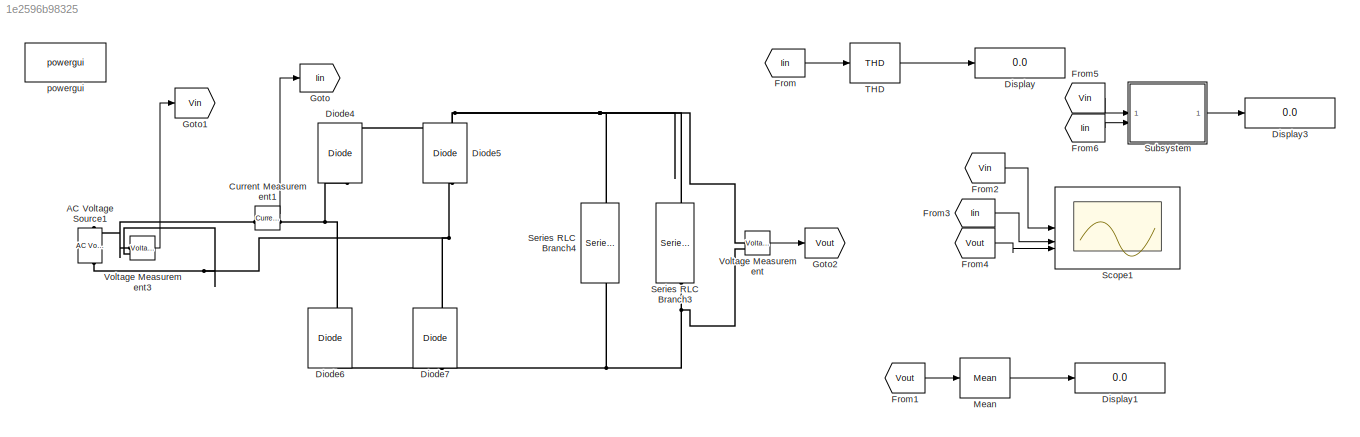
MODEL slx_1e2596b98325
KIND model
CONFIG AbsTol = auto
CONFIG EnableMultiTasking = off
CONFIG FixedStep = auto
CONFIG MaxStep = auto
CONFIG MinStep = auto
CONFIG RelTol = 1e-3
CONFIG SampleTimeConstraint = Unconstrained
CONFIG SolverName = VariableStepAuto
CONFIG StartTime = 0.0
CONFIG StopTime = 1
BLOCK [Reference] AC Voltage Source1  REF=spsACVoltageSourceLib/AC Voltage Source
  LibrarySourceBlock = sps_lib/Sources/AC Voltage Source
  SourceBlock = spsACVoltageSourceLib/AC Voltage Source
  SourceType = AC Voltage Source
BLOCK [Reference] Current Measurement1  REF=spsCurrentMeasurementLib/Current Measurement
  LibrarySourceBlock = sps_lib/Sensors and Measurements/Current Measurement
  SourceBlock = spsCurrentMeasurementLib/Current Measurement
  SourceType = Current Measurement
  UserDataPersistent = on
BLOCK [Reference] Diode4  REF=spsDiodeLib/Diode
  LibrarySourceBlock = sps_lib/Power Electronics/Diode
  NameLocation = right
  SourceBlock = spsDiodeLib/Diode
  SourceType = Diode
BLOCK [Reference] Diode5  REF=spsDiodeLib/Diode
  LibrarySourceBlock = sps_lib/Power Electronics/Diode
  NameLocation = right
  SourceBlock = spsDiodeLib/Diode
  SourceType = Diode
BLOCK [Reference] Diode6  REF=spsDiodeLib/Diode
  LibrarySourceBlock = sps_lib/Power Electronics/Diode
  NameLocation = right
  SourceBlock = spsDiodeLib/Diode
  SourceType = Diode
BLOCK [Reference] Diode7  REF=spsDiodeLib/Diode
  LibrarySourceBlock = sps_lib/Power Electronics/Diode
  NameLocation = right
  SourceBlock = spsDiodeLib/Diode
  SourceType = Diode
BLOCK [Display] Display
  Decimation = 1
BLOCK [Display] Display1
  Decimation = 1
BLOCK [Display] Display3
  Decimation = 1
BLOCK [From] From
  GotoTag = Iin
BLOCK [From] From1
  GotoTag = Vout
BLOCK [From] From2
  GotoTag = Vin
BLOCK [From] From3
  GotoTag = Iin
BLOCK [From] From4
  GotoTag = Vout
BLOCK [From] From5
  GotoTag = Vin
BLOCK [From] From6
  GotoTag = Iin
BLOCK [Goto] Goto
  GotoTag = Iin
BLOCK [Goto] Goto1
  GotoTag = Vin
BLOCK [Goto] Goto2
  GotoTag = Vout
BLOCK [Reference] Mean  REF=spsMeanLib/Mean
  LibrarySourceBlock = sps_lib/Sensors and Measurements/Mean
  SourceBlock = spsMeanLib/Mean
  SourceType = Mean
BLOCK [Scope] Scope1
  Floating = off
  NumInputPorts = 3
  ScopeSpecificationString = Simulink.scopes.TimeScopeBlockCfg('CurrentConfiguration', extmgr.ConfigurationSet(extmgr.Configuration('Core','General UI',true),extmgr.Configuration('Core','Source UI',true),extmgr.Configuration('Sources','WiredSimulink',true,'SampleTime','0.0001','DataLoggingVariableName','current'),extmgr.Configuration('Visuals','Time Domain',true,'SerializedDisplays',{struct('MinYLimReal','-388.90873','MaxYLim...<+3177ch>
BLOCK [Reference] Series RLC Branch3  REF=spsSeriesRLCBranchLib/Series RLC Branch
  LibrarySourceBlock = sps_lib/Passives/Series RLC Branch
  NameLocation = left
  SourceBlock = spsSeriesRLCBranchLib/Series RLC Branch
  SourceType = Series RLC Branch
BLOCK [Reference] Series RLC Branch4  REF=spsSeriesRLCBranchLib/Series RLC Branch
  LibrarySourceBlock = sps_lib/Passives/Series RLC Branch
  NameLocation = left
  SourceBlock = spsSeriesRLCBranchLib/Series RLC Branch
  SourceType = Series RLC Branch
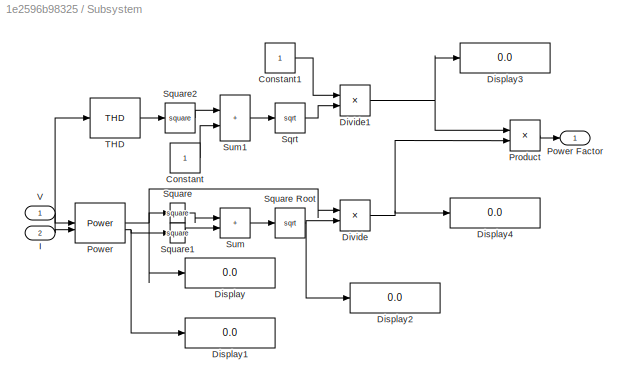
BLOCK [SubSystem] Subsystem
BLOCK [Constant] Subsystem/Constant
  SampleTime = -1
BLOCK [Constant] Subsystem/Constant1
  SampleTime = -1
BLOCK [Display] Subsystem/Display
  Decimation = 1
BLOCK [Display] Subsystem/Display1
  Decimation = 1
BLOCK [Display] Subsystem/Display2
  Decimation = 1
BLOCK [Display] Subsystem/Display3
  Decimation = 1
BLOCK [Display] Subsystem/Display4
  Decimation = 1
BLOCK [Product] Subsystem/Divide
  Inputs = */
BLOCK [Product] Subsystem/Divide1
  Inputs = */
BLOCK [Inport] Subsystem/I
  Port = 2
BLOCK [Reference] Subsystem/Power  REF=spsPowerLib/Power
  LibrarySourceBlock = sps_lib/Sensors and Measurements/Power
  SourceBlock = spsPowerLib/Power
  SourceType = Power
BLOCK [Outport] Subsystem/Power Factor
BLOCK [Product] Subsystem/Product
BLOCK [Sqrt] Subsystem/Sqrt
BLOCK [Math] Subsystem/Square
  Operator = square
BLOCK [Sqrt] Subsystem/Square Root
BLOCK [Math] Subsystem/Square1
  Operator = square
BLOCK [Math] Subsystem/Square2
  Operator = square
BLOCK [Sum] Subsystem/Sum
  IconShape = rectangular
  Inputs = |++
BLOCK [Sum] Subsystem/Sum1
  IconShape = rectangular
  Inputs = |++
BLOCK [Reference] Subsystem/THD  REF=spsTHDLib/THD
  LibrarySourceBlock = sps_lib/Sensors and Measurements/THD
  SourceBlock = spsTHDLib/THD
  SourceType = THD
BLOCK [Inport] Subsystem/V
BLOCK [Reference] THD  REF=spsTHDLib/THD
  LibrarySourceBlock = sps_lib/Sensors and Measurements/THD
  SourceBlock = spsTHDLib/THD
  SourceType = THD
BLOCK [Reference] Voltage Measurement  REF=spsVoltageMeasurementLib/Voltage Measurement
  LibrarySourceBlock = sps_lib/Sensors and Measurements/Voltage Measurement
  SourceBlock = spsVoltageMeasurementLib/Voltage Measurement
  SourceType = Voltage Measurement
  UserDataPersistent = on
BLOCK [Reference] Voltage Measurement3  REF=spsVoltageMeasurementLib/Voltage Measurement
  LibrarySourceBlock = sps_lib/Sensors and Measurements/Voltage Measurement
  SourceBlock = spsVoltageMeasurementLib/Voltage Measurement
  SourceType = Voltage Measurement
  UserDataPersistent = on
BLOCK [Reference] powergui  REF=sps_lib/powergui
  LibrarySourceBlock = sps_lib/powergui
  Priority = 1
  SourceBlock = sps_lib/powergui
  SourceType = PSB option menu block
LINE Current Measurement1:1 -> Goto:1
LINE From1:1 -> Mean:1
LINE From2:1 -> Scope1:1
LINE From3:1 -> Scope1:2
LINE From4:1 -> Scope1:3
LINE From5:1 -> Subsystem:1
LINE From6:1 -> Subsystem:2
LINE From:1 -> THD:1
LINE Mean:1 -> Display1:1
LINE Subsystem/Constant1:1 -> Subsystem/Divide1:1
LINE Subsystem/Constant:1 -> Subsystem/Sum1:2
NET Subsystem/Divide1:1 -> Subsystem/Display3:1, Subsystem/Product:1
NET Subsystem/Divide:1 -> Subsystem/Display4:1, Subsystem/Product:2
NET Subsystem/I:1 -> Subsystem/Power:2, Subsystem/THD:1
NET Subsystem/Power:1 -> Subsystem/Display:1, Subsystem/Divide:1, Subsystem/Square:1
NET Subsystem/Power:2 -> Subsystem/Display1:1, Subsystem/Square1:1
LINE Subsystem/Product:1 -> Subsystem/Power Factor:1
LINE Subsystem/Sqrt:1 -> Subsystem/Divide1:2
NET Subsystem/Square Root:1 -> Subsystem/Display2:1, Subsystem/Divide:2
LINE Subsystem/Square1:1 -> Subsystem/Sum:2
LINE Subsystem/Square2:1 -> Subsystem/Sum1:1
LINE Subsystem/Square:1 -> Subsystem/Sum:1
LINE Subsystem/Sum1:1 -> Subsystem/Sqrt:1
LINE Subsystem/Sum:1 -> Subsystem/Square Root:1
LINE Subsystem/THD:1 -> Subsystem/Square2:1
LINE Subsystem/V:1 -> Subsystem/Power:1
LINE Subsystem:1 -> Display3:1
LINE THD:1 -> Display:1
LINE Voltage Measurement3:1 -> Goto1:1
LINE Voltage Measurement:1 -> Goto2:1
PNET net1: AC Voltage Source1:LConn1 -- Diode5:LConn1 -- Diode7:RConn1 -- Voltage Measurement3:LConn2
PNET net2: AC Voltage Source1:RConn1 -- Current Measurement1:LConn1 -- Voltage Measurement3:LConn1
PNET net3: Current Measurement1:RConn1 -- Diode4:LConn1 -- Diode6:RConn1
PNET net4: Diode4:RConn1 -- Diode5:RConn1 -- Series RLC Branch3:LConn1 -- Series RLC Branch4:LConn1 -- Voltage Measurement:LConn1
PNET net5: Diode6:LConn1 -- Diode7:LConn1 -- Series RLC Branch3:RConn1 -- Series RLC Branch4:RConn1 -- Voltage Measurement:LConn2
note: NET lines group one-source signal fan-out (src -> all destinations, sorted); 1:1 wires keep LINE; PNET lines group multi-terminal physical nets as a canonical sorted terminal list (undirected conserving connections); 2-terminal nets keep the pairwise PLINE form
